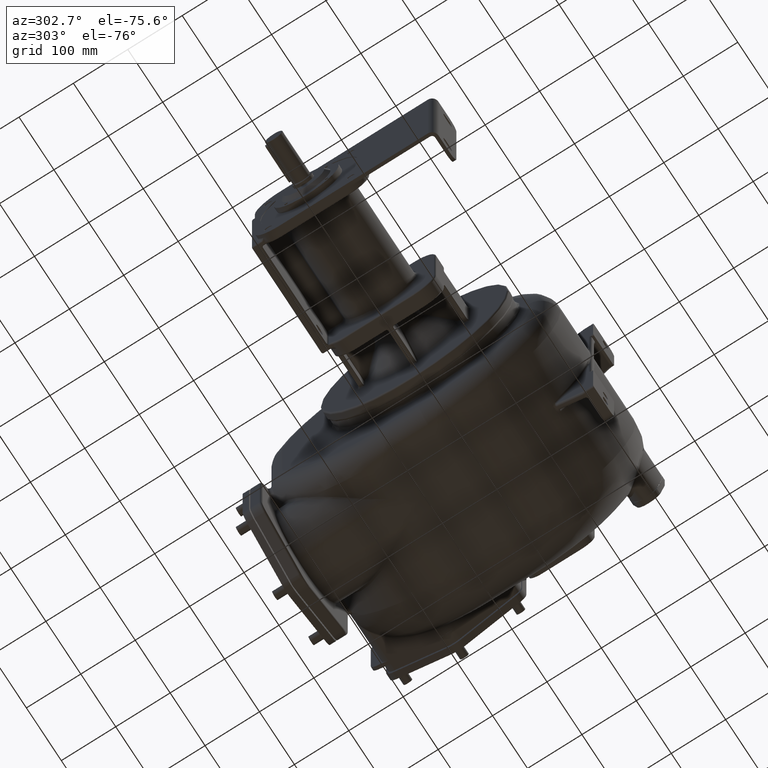
[diagram: clean part render]
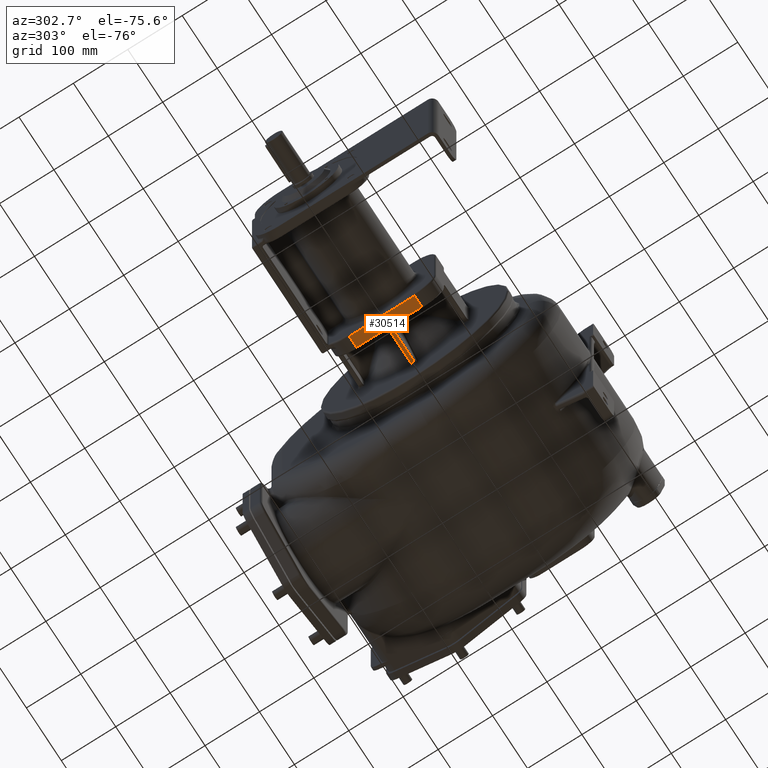
[diagram: same view with one face highlighted and labeled with its STEP entity id]
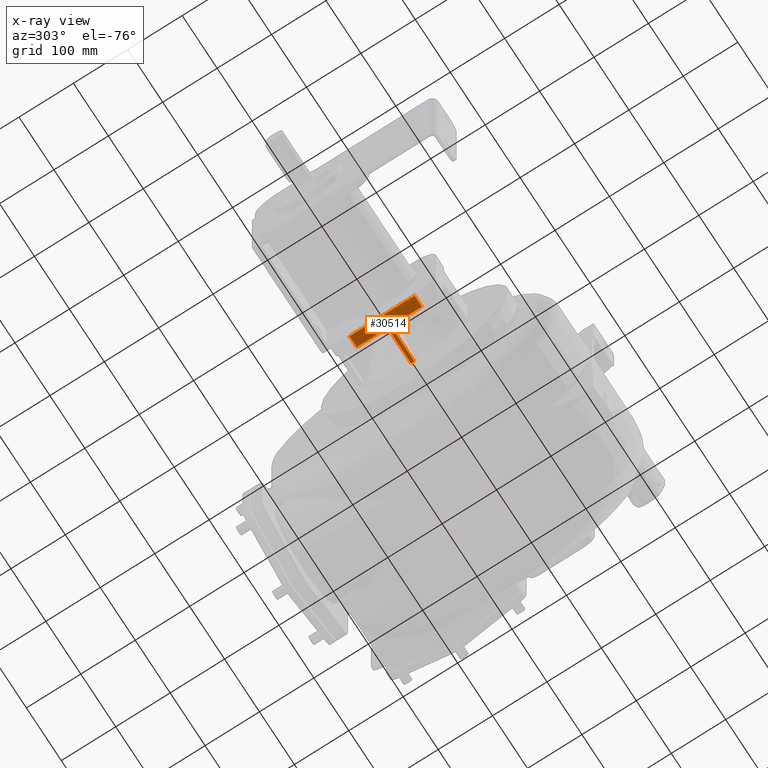
[diagram: x-ray of the same camera — body ghosted, the highlighted face saturated]
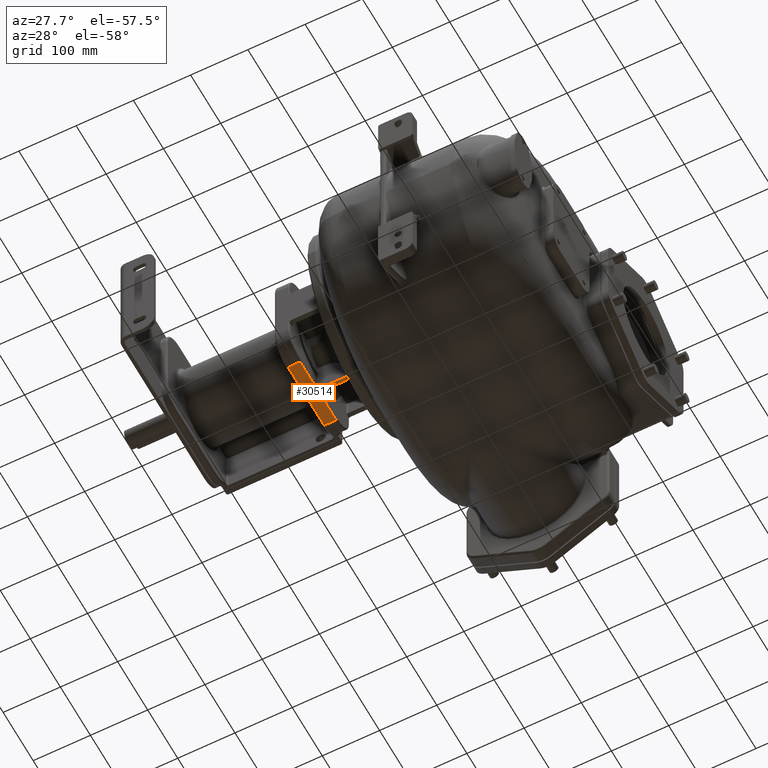
[diagram: same view with one face highlighted and labeled with its STEP entity id]
A machine part, auxiliary view. The second image highlights one B-rep face of the part: STEP entity #30514.
The next image is the same camera in x-ray: the body ghosted, the highlighted face saturated — about 0% of this face is hidden behind the body in this view.
A second angle (auxiliary view) of the same face is appended — the face is thin or edge-on in the first view.
In plain terms, the highlighted planar face has unit normal (0, 0, -1).
Its self-contained STEP definition (entity closure, byte-faithful):
#8659=DIRECTION('',(0.E0,-1.E0,0.E0));
#8660=VECTOR('',#8659,1.2E2);
#8661=CARTESIAN_POINT('',(-2.815E2,2.9E2,-1.E2));
#8662=LINE('',#8661,#8660);
#8663=DIRECTION('',(1.E0,8.120488408687E-14,0.E0));
#8664=VECTOR('',#8663,2.1E1);
#8665=CARTESIAN_POINT('',(-2.815E2,1.7E2,-1.E2));
#8666=LINE('',#8665,#8664);
#8667=DIRECTION('',(-2.076971073762E-13,-1.E0,0.E0));
#8668=VECTOR('',#8667,5.199999999995E1);
#8669=CARTESIAN_POINT('',(-2.605E2,2.22E2,-1.E2));
#8670=LINE('',#8669,#8668);
#8671=CARTESIAN_POINT('',(-2.555E2,2.22E2,-1.E2));
#8672=DIRECTION('',(0.E0,0.E0,1.E0));
#8673=DIRECTION('',(0.E0,1.E0,0.E0));
#8674=AXIS2_PLACEMENT_3D('',#8671,#8672,#8673);
#8676=DIRECTION('',(-1.E0,-2.447934328361E-13,-2.588942680309E-11));
#8677=VECTOR('',#8676,6.2E1);
#8678=CARTESIAN_POINT('',(-1.935E2,2.27E2,-9.999999999839E1));
#8679=LINE('',#8678,#8677);
#8680=DIRECTION('',(0.E0,-1.E0,-1.317251493068E-10));
#8681=VECTOR('',#8680,6.E0);
#8682=CARTESIAN_POINT('',(-1.935E2,2.33E2,-9.999999999760E1));
#8683=LINE('',#8682,#8681);
#8684=DIRECTION('',(-1.E0,1.402748884792E-13,-3.863679268999E-11));
#8685=VECTOR('',#8684,6.199999999996E1);
#8686=CARTESIAN_POINT('',(-1.935E2,2.33E2,-9.999999999760E1));
#8687=LINE('',#8686,#8685);
#8688=CARTESIAN_POINT('',(-2.555E2,2.38E2,-1.E2));
#8689=DIRECTION('',(0.E0,0.E0,-1.E0));
#8690=DIRECTION('',(0.E0,-1.E0,0.E0));
#8691=AXIS2_PLACEMENT_3D('',#8688,#8689,#8690);
#8693=DIRECTION('',(-1.912999673202E-13,1.E0,0.E0));
#8694=VECTOR('',#8693,5.199999999996E1);
#8695=CARTESIAN_POINT('',(-2.605E2,2.38E2,-1.E2));
#8696=LINE('',#8695,#8694);
#8707=DIRECTION('',(1.E0,-1.353414734781E-13,0.E0));
#8708=VECTOR('',#8707,2.1E1);
#8709=CARTESIAN_POINT('',(-2.815E2,2.9E2,-1.E2));
#8710=LINE('',#8709,#8708);
#20182=CARTESIAN_POINT('',(-2.605E2,1.7E2,-1.E2));
#20183=VERTEX_POINT('',#20182);
#20186=CARTESIAN_POINT('',(-2.605E2,2.22E2,-1.E2));
#20187=VERTEX_POINT('',#20186);
#20190=CARTESIAN_POINT('',(-2.555E2,2.27E2,-1.E2));
#20191=VERTEX_POINT('',#20190);
#20194=CARTESIAN_POINT('',(-1.935E2,2.27E2,-9.999999999839E1));
#20195=VERTEX_POINT('',#20194);
#20224=CARTESIAN_POINT('',(-2.605E2,2.9E2,-1.E2));
#20225=VERTEX_POINT('',#20224);
#20228=CARTESIAN_POINT('',(-2.605E2,2.38E2,-1.E2));
#20229=VERTEX_POINT('',#20228);
#20232=CARTESIAN_POINT('',(-2.555E2,2.33E2,-1.E2));
#20233=VERTEX_POINT('',#20232);
#20234=CARTESIAN_POINT('',(-1.935E2,2.33E2,-9.999999999760E1));
#20235=VERTEX_POINT('',#20234);
#21059=CARTESIAN_POINT('',(-2.815E2,2.9E2,-1.E2));
#21061=VERTEX_POINT('',#21059);
#21064=CARTESIAN_POINT('',(-2.815E2,1.7E2,-1.E2));
#21065=VERTEX_POINT('',#21064);
#30490=CARTESIAN_POINT('',(-2.585E2,2.9E2,-1.E2));
#30491=DIRECTION('',(0.E0,0.E0,-1.E0));
#30492=DIRECTION('',(0.E0,-1.E0,0.E0));
#30493=AXIS2_PLACEMENT_3D('',#30490,#30491,#30492);
#30494=PLANE('',#30493);
#30496=ORIENTED_EDGE('',*,*,#30495,.F.);
#30498=ORIENTED_EDGE('',*,*,#30497,.T.);
#30499=ORIENTED_EDGE('',*,*,#30480,.T.);
#30501=ORIENTED_EDGE('',*,*,#30500,.F.);
#30503=ORIENTED_EDGE('',*,*,#30502,.F.);
#30504=ORIENTED_EDGE('',*,*,#29729,.F.);
#30505=ORIENTED_EDGE('',*,*,#29939,.F.);
#30507=ORIENTED_EDGE('',*,*,#30506,.T.);
#30509=ORIENTED_EDGE('',*,*,#30508,.T.);
#30511=ORIENTED_EDGE('',*,*,#30510,.T.);
#30512=EDGE_LOOP('',(#30496,#30498,#30499,#30501,#30503,#30504,#30505,#30507,
#30509,#30511));
#30513=FACE_OUTER_BOUND('',#30512,.F.);
#30514=ADVANCED_FACE('',(#30513),#30494,.T.);
#8675=CIRCLE('',#8674,5.E0);
#8692=CIRCLE('',#8691,5.E0);
#29729=EDGE_CURVE('',#20195,#20191,#8679,.T.);
#29939=EDGE_CURVE('',#20235,#20195,#8683,.T.);
#30480=EDGE_CURVE('',#21065,#20183,#8666,.T.);
#30495=EDGE_CURVE('',#21061,#20225,#8710,.T.);
#30497=EDGE_CURVE('',#21061,#21065,#8662,.T.);
#30500=EDGE_CURVE('',#20187,#20183,#8670,.T.);
#30502=EDGE_CURVE('',#20191,#20187,#8675,.T.);
#30506=EDGE_CURVE('',#20235,#20233,#8687,.T.);
#30508=EDGE_CURVE('',#20233,#20229,#8692,.T.);
#30510=EDGE_CURVE('',#20229,#20225,#8696,.T.);